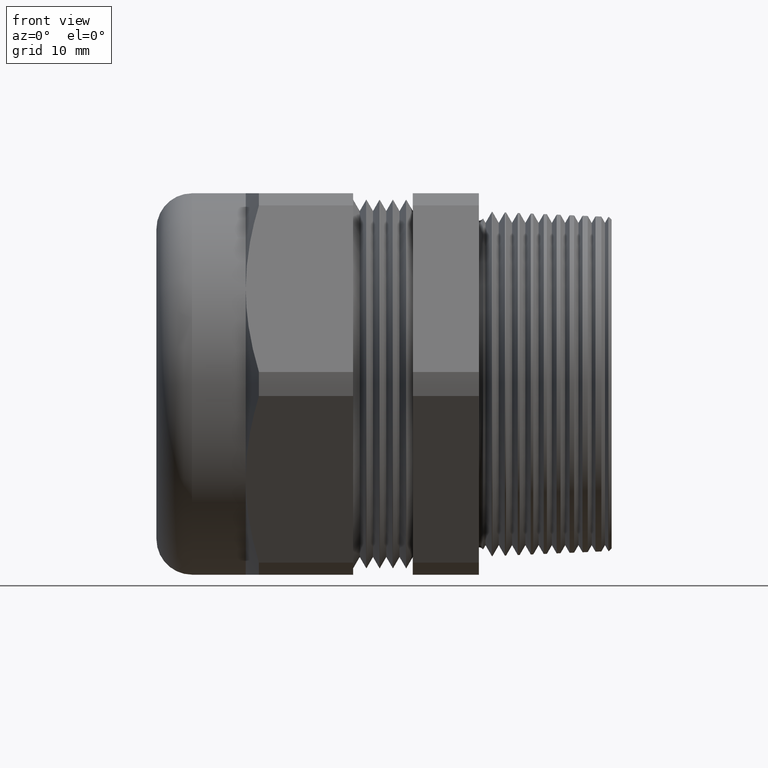
[diagram: clean part render]
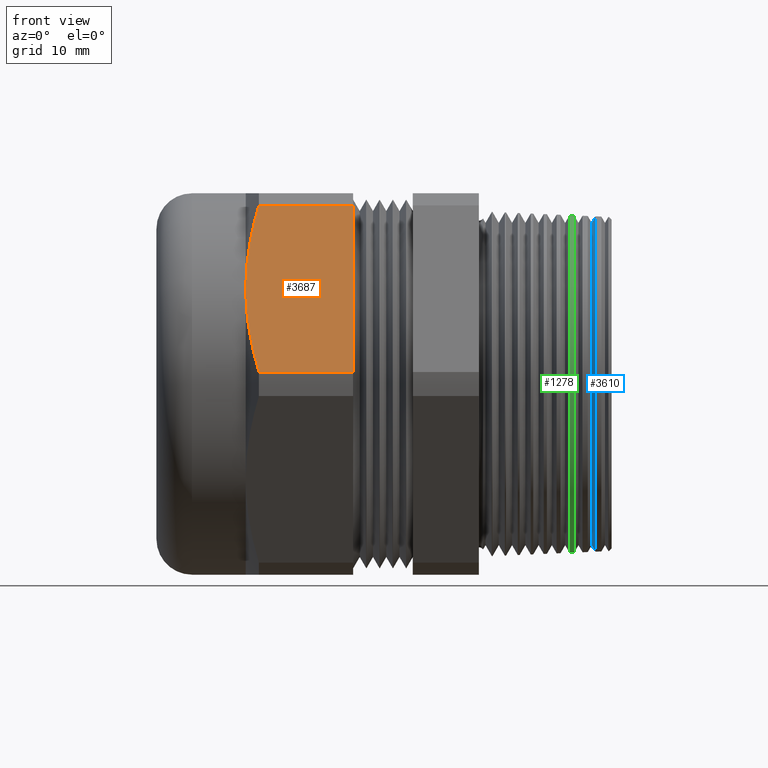
[diagram: same view with three faces highlighted in distinct colors, each labeled with its STEP entity id]
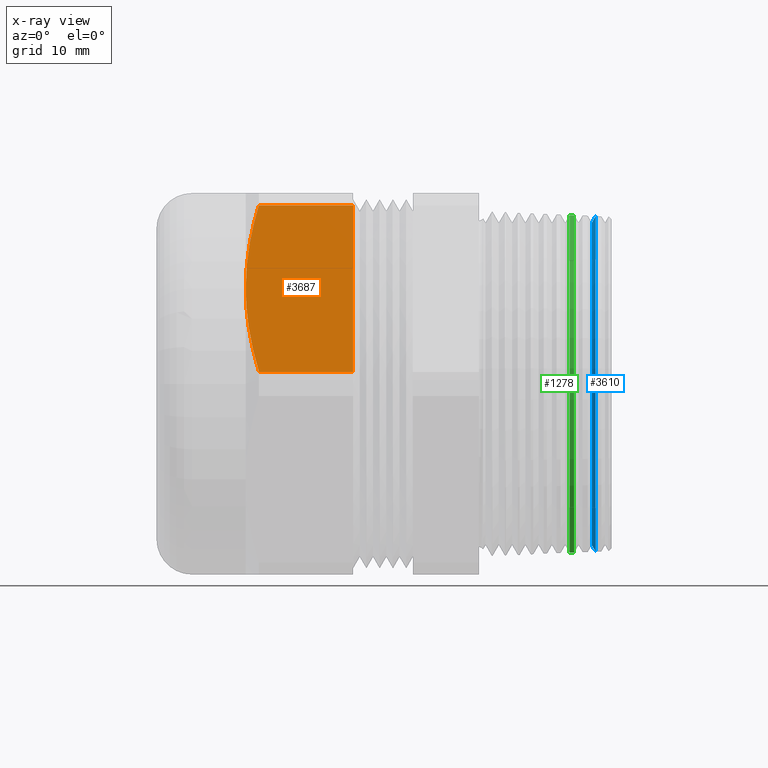
[diagram: x-ray of the same camera — body ghosted, the three highlighted faces saturated]
A machine part, front view with three faces highlighted in distinct colors.
The next image is the same camera in x-ray (body ghosted, the three faces saturated) — at least one of them is partly hidden behind the body in this view.
Their STEP definitions:

[orange] entity #3687 — the highlighted planar face has unit normal (0, -0.866, 0.5).
#49 = VERTEX_POINT ( 'NONE', #852 ) ;
#628 = VERTEX_POINT ( 'NONE', #1904 ) ;
#735 = EDGE_CURVE ( 'NONE', #628, #49, #2084, .T. ) ;
#852 = CARTESIAN_POINT ( 'NONE',  ( -0.5962500000000000600, -1.011985306278741600, 0.05719003301206736200 ) ) ;
#1904 = CARTESIAN_POINT ( 'NONE',  ( -1.043549760766007100, -1.011985306278742100, 0.05719003301206734100 ) ) ;
#2084 = LINE ( 'NONE', #2138, #2137 ) ;
#2136 = DIRECTION ( 'NONE',  ( 1.000000000000000000, 0.0000000000000000000, 0.0000000000000000000 ) ) ;
#2137 = VECTOR ( 'NONE', #2136, 39.37007874015748100 ) ;
#2138 = CARTESIAN_POINT ( 'NONE',  ( -4.001812670979164800, -1.011985306278741600, 0.05719003301206736200 ) ) ;
#2598 = CARTESIAN_POINT ( 'NONE',  ( -1.106250000000000200, -0.7837529904249169700, 0.4525000000000000100 ) ) ;
#2599 = CARTESIAN_POINT ( 'NONE',  ( -1.106250000000000400, -0.7451380027044968200, 0.5193831206654154800 ) ) ;
#2600 = CARTESIAN_POINT ( 'NONE',  ( -1.100467079602877900, -0.7068419146621162100, 0.5857138908859493800 ) ) ;
#2601 = CARTESIAN_POINT ( 'NONE',  ( -1.078852808142605600, -0.6308038602121250900, 0.7174156645020228800 ) ) ;
#2602 = CARTESIAN_POINT ( 'NONE',  ( -1.063070094710318700, -0.5930592116778800000, 0.7827913134771652400 ) ) ;
#2603 = CARTESIAN_POINT ( 'NONE',  ( -1.043549760766007100, -0.5555206745710913300, 0.8478099669879328700 ) ) ;
#2606 = B_SPLINE_CURVE_WITH_KNOTS ( 'NONE', 3,
 ( #2603, #2602, #2601, #2600, #2599, #2598 ),
 .UNSPECIFIED., .F., .F.,
 ( 4, 2, 4 ),
 ( 2.361307736701626600E-007, 0.005849691624596514000, 0.01169914711841935800 ),
 .UNSPECIFIED. ) ;
#2611 = CARTESIAN_POINT ( 'NONE',  ( -1.043549760766007100, -1.011985306278742100, 0.05719003301206734100 ) ) ;
#2612 = CARTESIAN_POINT ( 'NONE',  ( -1.062977874345244500, -0.9746241133509001600, 0.1219015173944726100 ) ) ;
#2613 = CARTESIAN_POINT ( 'NONE',  ( -1.078759109037020100, -0.9369642222475889100, 0.1871303621929184000 ) ) ;
#2614 = CARTESIAN_POINT ( 'NONE',  ( -1.095017983015788700, -0.8798672244860118500, 0.2860252632756159500 ) ) ;
#2615 = CARTESIAN_POINT ( 'NONE',  ( -1.099201489944982700, -0.8607336474862329300, 0.3191655907697634200 ) ) ;
#2616 = CARTESIAN_POINT ( 'NONE',  ( -1.104826834365080200, -0.8222419366301894100, 0.3858351896426824300 ) ) ;
#2617 = CARTESIAN_POINT ( 'NONE',  ( -1.106250000000000400, -0.8029299054080951700, 0.4192846089167057100 ) ) ;
#2618 = CARTESIAN_POINT ( 'NONE',  ( -1.106250000000000200, -0.7837529904249169700, 0.4525000000000000100 ) ) ;
#2619 = CARTESIAN_POINT ( 'NONE',  ( -1.106250000000000200, -0.7837529904249169700, 0.4525000000000000100 ) ) ;
#2621 = B_SPLINE_CURVE_WITH_KNOTS ( 'NONE', 3,
 ( #2618, #2617, #2616, #2615, #2614, #2613, #2612, #2611 ),
 .UNSPECIFIED., .F., .F.,
 ( 4, 2, 2, 4 ),
 ( 0.01169914711841935800, 0.01460409458376863000, 0.01750904204911790300, 0.02331893697981645600 ),
 .UNSPECIFIED. ) ;
#2622 = LINE ( 'NONE', #2688, #2687 ) ;
#2623 = CARTESIAN_POINT ( 'NONE',  ( -0.5962499999999999500, -0.5555206745710912200, 0.8478099669879328700 ) ) ;
#2639 = DIRECTION ( 'NONE',  ( 0.0000000000000000000, -0.5000000000000001100, -0.8660254037844384900 ) ) ;
#2640 = DIRECTION ( 'NONE',  ( 0.0000000000000000000, -0.8660254037844386000, 0.5000000000000002200 ) ) ;
#2641 = CARTESIAN_POINT ( 'NONE',  ( -4.001812670979164800, -0.5555206745710915600, 0.8478099669879326500 ) ) ;
#2642 = AXIS2_PLACEMENT_3D ( 'NONE', #2641, #2640, #2639 ) ;
#2643 = PLANE ( 'NONE',  #2642 ) ;
#2644 = FACE_OUTER_BOUND ( 'NONE', #3673, .T. ) ;
#2680 = DIRECTION ( 'NONE',  ( 0.0000000000000000000, 0.5000000000000001100, 0.8660254037844384900 ) ) ;
#2681 = VECTOR ( 'NONE', #2680, 39.37007874015748900 ) ;
#2682 = CARTESIAN_POINT ( 'NONE',  ( -0.5962500000000000600, -0.5651279904249165700, 0.8311696078047459100 ) ) ;
#2683 = LINE ( 'NONE', #2682, #2681 ) ;
#2684 = CARTESIAN_POINT ( 'NONE',  ( -1.043549760766007100, -0.5555206745710913300, 0.8478099669879328700 ) ) ;
#2686 = DIRECTION ( 'NONE',  ( 1.000000000000000000, 0.0000000000000000000, 0.0000000000000000000 ) ) ;
#2687 = VECTOR ( 'NONE', #2686, 39.37007874015748100 ) ;
#2688 = CARTESIAN_POINT ( 'NONE',  ( -4.001812670979164800, -0.5555206745710912200, 0.8478099669879328700 ) ) ;
#3666 = EDGE_CURVE ( 'NONE', #3671, #628, #2621, .T. ) ;
#3670 = ORIENTED_EDGE ( 'NONE', *, *, #3666, .T. ) ;
#3671 = VERTEX_POINT ( 'NONE', #2619 ) ;
#3673 = EDGE_LOOP ( 'NONE', ( #3677, #3675, #3670, #3699, #3698 ) ) ;
#3675 = ORIENTED_EDGE ( 'NONE', *, *, #3678, .T. ) ;
#3677 = ORIENTED_EDGE ( 'NONE', *, *, #3693, .F. ) ;
#3678 = EDGE_CURVE ( 'NONE', #3697, #3671, #2606, .T. ) ;
#3687 = ADVANCED_FACE ( 'NONE', ( #2644 ), #2643, .T. ) ;
#3692 = VERTEX_POINT ( 'NONE', #2623 ) ;
#3693 = EDGE_CURVE ( 'NONE', #3697, #3692, #2622, .T. ) ;
#3697 = VERTEX_POINT ( 'NONE', #2684 ) ;
#3698 = ORIENTED_EDGE ( 'NONE', *, *, #3702, .T. ) ;
#3699 = ORIENTED_EDGE ( 'NONE', *, *, #735, .T. ) ;
#3702 = EDGE_CURVE ( 'NONE', #49, #3692, #2683, .T. ) ;

[blue] entity #3610 — the highlighted conical surface has half-angle 60 deg.
#342 = VERTEX_POINT ( 'NONE', #1301 ) ;
#381 = EDGE_CURVE ( 'NONE', #2861, #342, #1417, .T. ) ;
#582 = EDGE_CURVE ( 'NONE', #342, #3644, #1853, .T. ) ;
#1301 = CARTESIAN_POINT ( 'NONE',  ( 0.5537062176610504400, 9.746041279921619600E-017, -0.7958246644426124600 ) ) ;
#1414 = DIRECTION ( 'NONE',  ( 0.5000000000000012200, 0.0000000000000000000, -0.8660254037844379300 ) ) ;
#1415 = VECTOR ( 'NONE', #1414, 39.37007874015748100 ) ;
#1416 = CARTESIAN_POINT ( 'NONE',  ( 0.5358319270764287900, 0.0000000000000000000, -0.7648654850007971000 ) ) ;
#1417 = LINE ( 'NONE', #1416, #1415 ) ;
#1849 = DIRECTION ( 'NONE',  ( 0.0000000000000000000, 0.0000000000000000000, -1.000000000000000000 ) ) ;
#1850 = DIRECTION ( 'NONE',  ( -1.000000000000000000, 0.0000000000000000000, 0.0000000000000000000 ) ) ;
#1851 = CARTESIAN_POINT ( 'NONE',  ( 0.5537062176610504400, 0.0000000000000000000, 0.0000000000000000000 ) ) ;
#1852 = AXIS2_PLACEMENT_3D ( 'NONE', #1851, #1850, #1849 ) ;
#1853 = CIRCLE ( 'NONE', #1852, 0.7958246644426126800 ) ;
#2316 = CARTESIAN_POINT ( 'NONE',  ( 0.5358319270764287900, 0.0000000000000000000, 0.7648654850007971000 ) ) ;
#2317 = CARTESIAN_POINT ( 'NONE',  ( 0.5358319270764287900, 9.566275371890653700E-017, -0.7648654850007971000 ) ) ;
#2319 = DIRECTION ( 'NONE',  ( 0.5000000000000012200, 1.060575238724906100E-016, 0.8660254037844379300 ) ) ;
#2320 = VECTOR ( 'NONE', #2319, 39.37007874015748100 ) ;
#2321 = CARTESIAN_POINT ( 'NONE',  ( 0.5358319270764287900, 9.366900679845139800E-017, 0.7648654850007971000 ) ) ;
#2322 = LINE ( 'NONE', #2321, #2320 ) ;
#2442 = DIRECTION ( 'NONE',  ( 0.0000000000000000000, 0.0000000000000000000, 1.000000000000000000 ) ) ;
#2443 = DIRECTION ( 'NONE',  ( -1.000000000000000000, 0.0000000000000000000, 0.0000000000000000000 ) ) ;
#2444 = AXIS2_PLACEMENT_3D ( 'NONE', #2450, #2443, #2442 ) ;
#2445 = CIRCLE ( 'NONE', #2444, 0.7648654850007971000 ) ;
#2450 = CARTESIAN_POINT ( 'NONE',  ( 0.5358319270764287900, 0.0000000000000000000, 0.0000000000000000000 ) ) ;
#2477 = DIRECTION ( 'NONE',  ( 0.0000000000000000000, 0.0000000000000000000, -1.000000000000000000 ) ) ;
#2478 = DIRECTION ( 'NONE',  ( 1.000000000000000000, 0.0000000000000000000, 0.0000000000000000000 ) ) ;
#2479 = AXIS2_PLACEMENT_3D ( 'NONE', #2486, #2478, #2477 ) ;
#2481 = CONICAL_SURFACE ( 'NONE', #2479, 0.7648654850007971000, 1.047197551196596300 ) ;
#2482 = FACE_OUTER_BOUND ( 'NONE', #3600, .T. ) ;
#2486 = CARTESIAN_POINT ( 'NONE',  ( 0.5358319270764287900, 0.0000000000000000000, 0.0000000000000000000 ) ) ;
#2540 = CARTESIAN_POINT ( 'NONE',  ( 0.5537062176610504400, 0.0000000000000000000, 0.7958246644426124600 ) ) ;
#2857 = EDGE_CURVE ( 'NONE', #2862, #3644, #2322, .T. ) ;
#2861 = VERTEX_POINT ( 'NONE', #2317 ) ;
#2862 = VERTEX_POINT ( 'NONE', #2316 ) ;
#3582 = EDGE_CURVE ( 'NONE', #2861, #2862, #2445, .T. ) ;
#3600 = EDGE_LOOP ( 'NONE', ( #3602, #3603, #3608, #3604 ) ) ;
#3602 = ORIENTED_EDGE ( 'NONE', *, *, #2857, .F. ) ;
#3603 = ORIENTED_EDGE ( 'NONE', *, *, #3582, .F. ) ;
#3604 = ORIENTED_EDGE ( 'NONE', *, *, #582, .T. ) ;
#3608 = ORIENTED_EDGE ( 'NONE', *, *, #381, .T. ) ;
#3610 = ADVANCED_FACE ( 'NONE', ( #2482 ), #2481, .T. ) ;
#3644 = VERTEX_POINT ( 'NONE', #2540 ) ;

[green] entity #1278 — the highlighted conical surface has half-angle 2.5 deg.
#337 = VERTEX_POINT ( 'NONE', #1309 ) ;
#355 = VERTEX_POINT ( 'NONE', #1332 ) ;
#359 = VERTEX_POINT ( 'NONE', #1386 ) ;
#401 = VERTEX_POINT ( 'NONE', #1444 ) ;
#610 = ORIENTED_EDGE ( 'NONE', *, *, #3879, .F. ) ;
#625 = ORIENTED_EDGE ( 'NONE', *, *, #3876, .T. ) ;
#627 = ORIENTED_EDGE ( 'NONE', *, *, #630, .F. ) ;
#630 = EDGE_CURVE ( 'NONE', #401, #337, #1901, .T. ) ;
#653 = EDGE_LOOP ( 'NONE', ( #610, #1243, #625, #627 ) ) ;
#1004 = EDGE_CURVE ( 'NONE', #355, #359, #2147, .T. ) ;
#1243 = ORIENTED_EDGE ( 'NONE', *, *, #1004, .F. ) ;
#1278 = ADVANCED_FACE ( 'NONE', ( #2231 ), #2230, .T. ) ;
#1309 = CARTESIAN_POINT ( 'NONE',  ( 0.4308042873815392500, 0.0000000000000000000, 0.8011906786038922600 ) ) ;
#1332 = CARTESIAN_POINT ( 'NONE',  ( 0.4524040460829980000, 0.0000000000000000000, 0.8002476127723902000 ) ) ;
#1386 = CARTESIAN_POINT ( 'NONE',  ( 0.4524040460829980000, 9.805981387829853200E-017, -0.8002476127723902000 ) ) ;
#1444 = CARTESIAN_POINT ( 'NONE',  ( 0.4308042873815392500, 9.811756000589525700E-017, -0.8011906786038922600 ) ) ;
#1897 = DIRECTION ( 'NONE',  ( 0.0000000000000000000, 0.0000000000000000000, -1.000000000000000000 ) ) ;
#1898 = DIRECTION ( 'NONE',  ( -1.000000000000000000, 0.0000000000000000000, 0.0000000000000000000 ) ) ;
#1899 = CARTESIAN_POINT ( 'NONE',  ( 0.4308042873815392500, 0.0000000000000000000, 0.0000000000000000000 ) ) ;
#1900 = AXIS2_PLACEMENT_3D ( 'NONE', #1899, #1898, #1897 ) ;
#1901 = CIRCLE ( 'NONE', #1900, 0.8011906786038923700 ) ;
#2143 = DIRECTION ( 'NONE',  ( 0.0000000000000000000, 0.0000000000000000000, 1.000000000000000000 ) ) ;
#2144 = DIRECTION ( 'NONE',  ( 1.000000000000000000, 0.0000000000000000000, 0.0000000000000000000 ) ) ;
#2145 = CARTESIAN_POINT ( 'NONE',  ( 0.4524040460829980000, 0.0000000000000000000, 0.0000000000000000000 ) ) ;
#2146 = AXIS2_PLACEMENT_3D ( 'NONE', #2145, #2144, #2143 ) ;
#2147 = CIRCLE ( 'NONE', #2146, 0.8002476127723902000 ) ;
#2225 = DIRECTION ( 'NONE',  ( 0.0000000000000000000, 0.0000000000000000000, 1.000000000000000000 ) ) ;
#2226 = DIRECTION ( 'NONE',  ( -1.000000000000000000, 0.0000000000000000000, 0.0000000000000000000 ) ) ;
#2227 = CARTESIAN_POINT ( 'NONE',  ( 0.6299999999999997800, 0.0000000000000000000, 0.0000000000000000000 ) ) ;
#2228 = AXIS2_PLACEMENT_3D ( 'NONE', #2227, #2226, #2225 ) ;
#2230 = CONICAL_SURFACE ( 'NONE', #2228, 0.7924936059676371800, 0.04363323129985850800 ) ;
#2231 = FACE_OUTER_BOUND ( 'NONE', #653, .T. ) ;
#3006 = DIRECTION ( 'NONE',  ( -0.9990482215818576900, 5.341834311772756400E-018, -0.04361938736533627100 ) ) ;
#3007 = VECTOR ( 'NONE', #3006, 39.37007874015748100 ) ;
#3008 = CARTESIAN_POINT ( 'NONE',  ( 0.6299999999999997800, 9.705247578930107000E-017, -0.7924936059676371800 ) ) ;
#3009 = LINE ( 'NONE', #3008, #3007 ) ;
#3010 = DIRECTION ( 'NONE',  ( -0.9990482215818576900, 0.0000000000000000000, 0.04361938736533627100 ) ) ;
#3011 = VECTOR ( 'NONE', #3010, 39.37007874015748100 ) ;
#3012 = CARTESIAN_POINT ( 'NONE',  ( 0.6299999999999997800, 0.0000000000000000000, 0.7924936059676371800 ) ) ;
#3013 = LINE ( 'NONE', #3012, #3011 ) ;
#3876 = EDGE_CURVE ( 'NONE', #355, #337, #3013, .T. ) ;
#3879 = EDGE_CURVE ( 'NONE', #359, #401, #3009, .T. ) ;